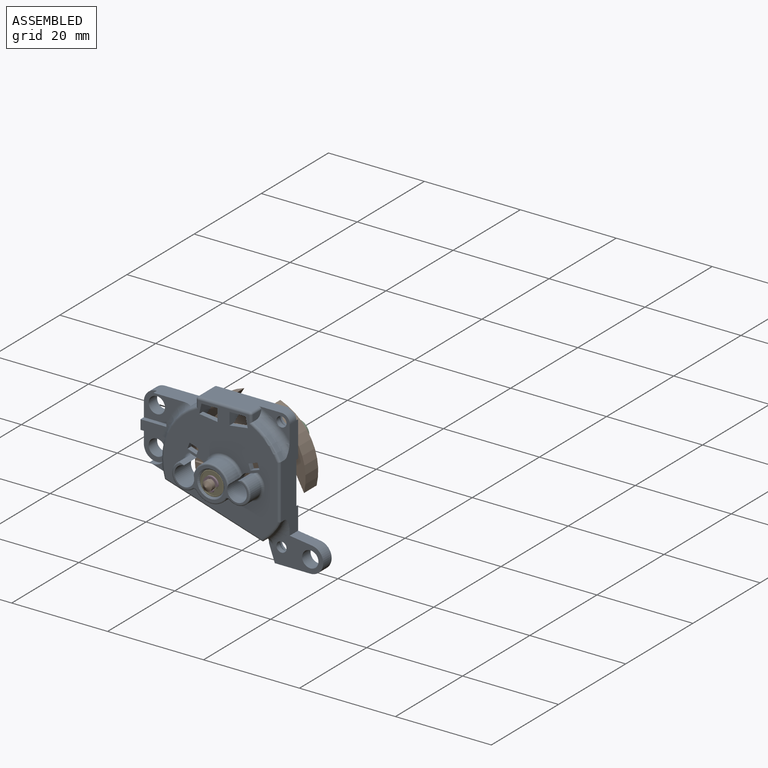
[diagram: assembled view]
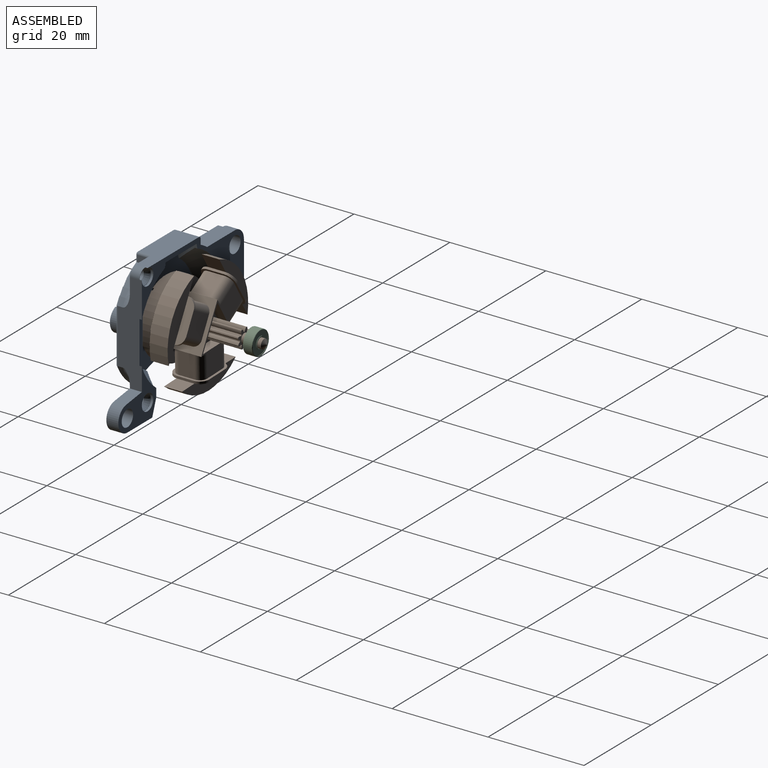
[diagram: assembled view, second angle]
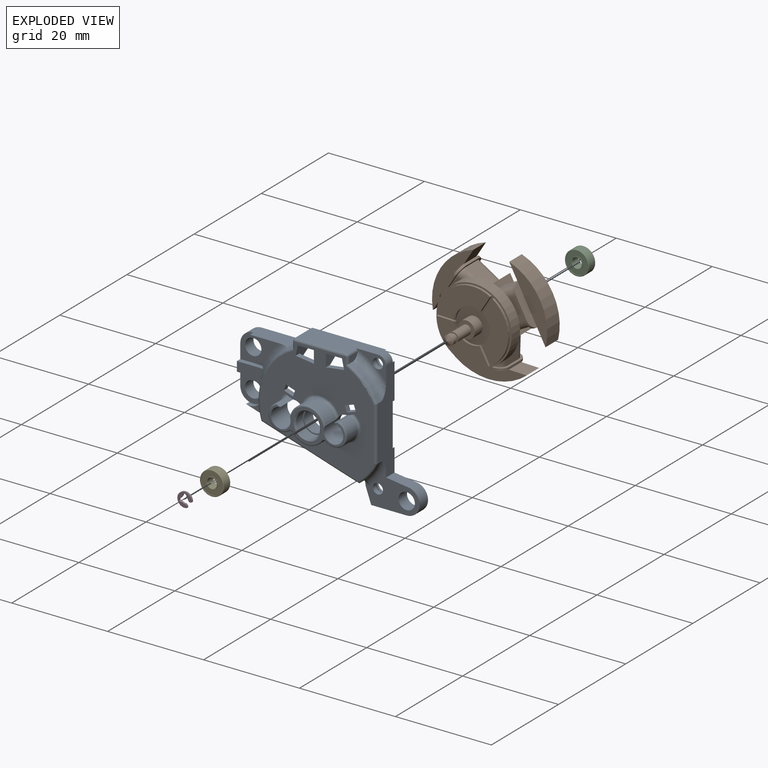
[diagram: exploded view]
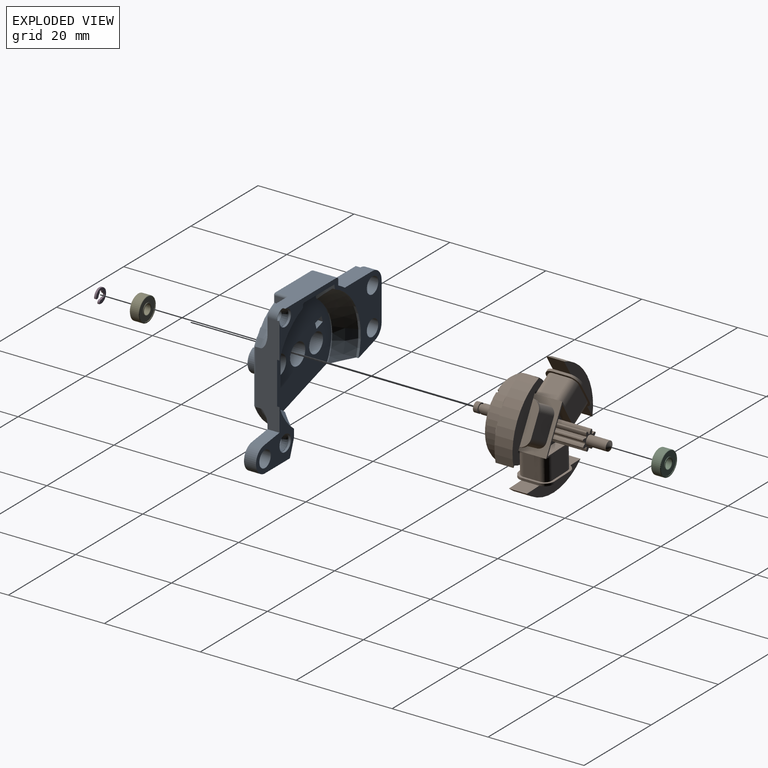
[diagram: exploded view, second angle]
ASSEMBLY  parts=5 mates=4
PART A: 124 faces, bbox 37.6x9.5x30.6 mm
  f0: cone r=12.5mm half-angle=34deg, axis (0,1,0), area 78.3mm2, adj f13,f17,f18,f19,f47,f48,f57,f105
  f1: plane 1.25x0.06mm, normal (0,1,0), area 0mm2, adj f34,f38,f103
  f2: plane 2.71x1.29mm, normal (0,-1,0), area 1.1mm2, adj f18,f71,f88
  f3: plane 5.09x2mm, normal (0,-1,0), area 9.6mm2, adj f31,f68,f69,f88
  f4: plane 23.7x22.7mm, normal (0,-1,0), area 287.5mm2, adj f11,f13,f34,f35,f38,f54,f56,f58
  f5: cylinder r=13mm len=4.59mm, axis (0,1,0), area 5.9mm2, adj f12,f19,f84,f85,f86,f97
  f6: plane 5.05x1.41mm, normal (-1,0,0), area 5.8mm2, adj f14,f27,f28,f88,f94
  f7: plane 5.7x5.4mm, normal (0,-1,0), area 18.6mm2, adj f30,f31,f40,f68,f72,f73
  f8: plane 5.7x5.4mm, normal (0,-1,0), area 18.6mm2, adj f31,f32,f39,f69,f70,f71
  f9: plane 20x19.58mm, normal (0,1,0), area 249.9mm2, adj f11,f13,f17,f18,f33,f36,f54,f56
  f10: plane 6.4x4.94mm, normal (0,-1,0), area 8.6mm2, adj f12,f25,f26,f41,f53,f89,f91
  f11: plane 5.5x4.15mm, normal (0.98,0,-0.21), area 13.2mm2, adj f4,f9,f14,f33,f34,f50,f58,f104
  f12: plane 21x5mm, normal (1,0,0), area 78.5mm2, adj f5,f10,f14,f15,f16,f24,f25,f43
  f13: plane 5.5x4.15mm, normal (-0.98,0,-0.21), area 13.2mm2, adj f0,f4,f9,f14,f17,f34,f47,f59
  f14: plane 30.4x17.63mm, normal (0,1,0), area 118.5mm2, adj f6,f11,f12,f13,f18,f26,f27,f28
  f15: plane 11.3x10.8mm, normal (0,1,0), area 47.6mm2, adj f12,f20,f21,f22,f23,f24,f42,f46
  f16: plane 11.3x6.64mm, normal (0,-1,0), area 40.8mm2, adj f12,f20,f21,f22,f23,f24,f37,f42
  f17: cylinder r=10mm len=17.16mm, axis (0,1,0), area 4.1mm2, adj f0,f9,f13,f57
  f18: plane 21.3x6.62mm, normal (-0.3,0,-0.95), area 36.9mm2, adj f0,f2,f9,f14,f19,f32,f33,f50
  f19: plane 4.5x3.49mm, normal (-0.29,0,-0.96), area 9.1mm2, adj f0,f5,f18,f20,f87,f95
  f20: plane 4.19x1.92mm, normal (-1,0,0), area 4.8mm2, adj f15,f16,f19,f21,f48,f87
  f21: plane 3.4x2.5mm, normal (-0.94,0,-0.33), area 9mm2, adj f15,f16,f20,f22
  f22: plane 7.4x2.5mm, normal (0,0,-1), area 18.5mm2, adj f15,f16,f21,f23
  f23: cylinder r=2.7mm len=5.38mm, axis (0,1,0), area 20.3mm2, adj f15,f16,f22,f24
  f24: plane 4.66x2.5mm, normal (0.13,0,0.99), area 11.7mm2, adj f12,f15,f16,f23
  f25: cylinder r=1.7mm len=2mm, axis (0,1,0), area 5.3mm2, adj f10,f12,f26,f44
  f26: plane 15.3x5mm, normal (0,0,1), area 64.8mm2, adj f10,f14,f25,f27,f43,f53,f98
  f27: cylinder r=0.5mm len=5mm, axis (0,1,0), area 3.9mm2, adj f6,f14,f26,f96
  f28: cylinder r=13.2mm len=4.25mm, axis (0,1,0), area 9.6mm2, adj f6,f14,f29,f88
  f29: plane 8.37x4.35mm, normal (0,0,1), area 29.4mm2, adj f14,f28,f30,f72,f74,f88
  f30: cylinder r=2.7mm len=2.7mm, axis (0,1,0), area 10.6mm2, adj f7,f14,f29,f31
  f31: plane 8x3.5mm, normal (-1,0,0), area 22mm2, adj f3,f7,f8,f14,f30,f32,f68,f69
  f32: cylinder r=2.7mm len=2.58mm, axis (0,1,0), area 8.6mm2, adj f8,f14,f18,f31
  f33: cylinder r=10mm len=13.49mm, axis (0,1,0), area 3.1mm2, adj f9,f11,f18,f104
  f34: plane 9.2x5.5mm, normal (0,0,-1), area 38.1mm2, adj f1,f4,f11,f13,f14,f35,f38,f49
  f35: plane 5.03x2.61mm, normal (-1,0,0), area 8.2mm2, adj f4,f34,f36,f49,f58,f103
  f36: cylinder r=10mm len=2.5mm, axis (0,1,0), area 0.5mm2, adj f9,f35,f38,f103
  f37: cylinder r=1.05mm len=2.1mm, axis (0,1,0), area 6.6mm2, adj f16,f85,f107
  f38: plane 5.03x2.61mm, normal (1,0,0), area 8.2mm2, adj f1,f4,f34,f36,f59,f103
  f39: cylinder r=1.7mm len=3.4mm, axis (0,1,0), area 26.7mm2, adj f8,f14
  f40: cylinder r=1.7mm len=3.4mm, axis (0,1,0), area 26.7mm2, adj f7,f14
  f41: cylinder r=1.05mm len=2.1mm, axis (0,1,0), area 6.6mm2, adj f10,f90,f108
  f42: cylinder r=1.7mm len=3.4mm, axis (0,1,0), area 26.7mm2, adj f15,f16
  f43: cylinder r=1.7mm len=3.4mm, axis (0,1,0), area 4mm2, adj f12,f14,f26,f44
  f44: plane 3.4x3.4mm, normal (0,1,0), area 0.5mm2, adj f25,f43,f108
  f45: plane 3.4x3.4mm, normal (0,1,0), area 0.5mm2, adj f46,f107
  f46: cylinder r=1.7mm len=3.4mm, axis (0,1,0), area 5.3mm2, adj f15,f45
  f47: cylinder r=12.5mm len=7.14mm, axis (0,1,0), area 5.1mm2, adj f0,f12,f13,f14,f106
  f48: cylinder r=12.5mm len=5.67mm, axis (0,1,0), area 3.6mm2, adj f0,f12,f15,f20,f106
  f49: plane 1.25x0.06mm, normal (0,1,0), area 0mm2, adj f34,f35,f103
  f50: cylinder r=12.5mm len=15.67mm, axis (0,1,0), area 9.5mm2, adj f11,f14,f18,f104
  f51: cylinder r=13mm len=5.97mm, axis (0,1,0), area 8.5mm2, adj f12,f52,f89,f90,f91,f101
  f52: plane 2.7x1.59mm, normal (1,0,0), area 2.9mm2, adj f51,f53,f89,f102
  f53: cylinder r=0.5mm len=2.5mm, axis (0,1,0), area 2mm2, adj f10,f26,f52,f89,f100
  f54: cylinder r=2.05mm len=4.9mm, axis (0,1,0), area 54.1mm2, adj f4,f9,f76,f77,f79,f121,f123
  f55: cylinder r=2.52mm len=5.05mm, axis (0,1,0), area 31.7mm2, adj f110,f122
  f56: cylinder r=2.05mm len=4.9mm, axis (0,1,0), area 54.1mm2, adj f4,f9,f76,f77,f81,f121,f123
  f57: plane 0.42x0.38mm, normal (-0.68,0,0.73), area 0.2mm2, adj f0,f9,f17,f18
  f58: plane 3.8x1.1mm, normal (0.13,0,0.99), area 4.2mm2, adj f4,f9,f11,f35
  f59: plane 3.8x1.1mm, normal (-0.13,0,0.99), area 4.2mm2, adj f4,f9,f13,f38
  f60: plane 1.89x1.1mm, normal (-0.32,0,-0.95), area 2.2mm2, adj f4,f9,f61,f63
  f61: plane 1.23x1.1mm, normal (0.95,0,-0.32), area 1.4mm2, adj f4,f9,f60,f62
  f62: plane 1.89x1.1mm, normal (0.32,0,0.95), area 2.2mm2, adj f4,f9,f61,f63
  f63: plane 1.23x1.1mm, normal (-0.95,0,0.32), area 1.4mm2, adj f4,f9,f60,f62
  f64: plane 1.89x1.1mm, normal (-0.32,0,0.95), area 2.2mm2, adj f4,f9,f65,f67
  f65: plane 1.23x1.1mm, normal (-0.95,0,-0.32), area 1.4mm2, adj f4,f9,f64,f66
  f66: plane 1.89x1.1mm, normal (0.32,0,-0.95), area 2.2mm2, adj f4,f9,f65,f67
  f67: plane 1.23x1.1mm, normal (0.95,0,0.32), area 1.4mm2, adj f4,f9,f64,f66
  f68: plane 5.4x1.03mm, normal (0,0,1), area 5.4mm2, adj f3,f7,f31,f73,f88
  f69: plane 5.4x1.28mm, normal (0,0,-1), area 5.5mm2, adj f3,f8,f31,f70,f88
  f70: plane 3.21x1.81mm, normal (-1,0,0), area 4.4mm2, adj f8,f69,f71,f88
  f71: cylinder r=2.7mm len=3.5mm, axis (0,1,0), area 5.8mm2, adj f2,f8,f18,f70,f88
  f72: cylinder r=2.7mm len=2.7mm, axis (0,1,0), area 4.2mm2, adj f7,f29,f73,f74
  f73: plane 3.01x1.04mm, normal (-1,0,0), area 3mm2, adj f7,f68,f72,f74,f88
  f74: plane 6.21x4.92mm, normal (0,-1,0), area 8.9mm2, adj f29,f72,f73,f88
  f75: cylinder r=3.75mm len=6.16mm, axis (0,1,0), area 21.7mm2, adj f82,f83,f113,f118
  f76: cylinder r=3.75mm len=7.29mm, axis (0,1,0), area 30mm2, adj f54,f56,f121,f123
  f77: plane 15.7x6.9mm, normal (0,-1,0), area 18.5mm2, adj f54,f56,f79,f81,f111,f112,f113,f114
  f78: cylinder r=2.65mm len=5.05mm, axis (0,1,0), area 27mm2, adj f79,f82,f115,f116
  f79: plane 3.95x1.82mm, normal (0.32,0,0.95), area 4.2mm2, adj f4,f54,f77,f78,f115,f116
  f80: cylinder r=2.65mm len=5.05mm, axis (0,1,0), area 27mm2, adj f81,f83,f111,f120
  f81: plane 3.95x1.82mm, normal (-0.32,0,0.95), area 4.2mm2, adj f4,f56,f77,f80,f111,f120
  f82: cylinder r=0.5mm len=3mm, axis (0,-1,0), area 2.5mm2, adj f75,f78,f114,f117
  f83: cylinder r=0.5mm len=3mm, axis (0,-1,0), area 2.5mm2, adj f75,f80,f112,f119
  f84: torus R=14.5mm, axis (0,-1,0), area 10.1mm2, adj f5,f12,f16,f85
  f85: bspline ~1.98x1.94mm, area 1.7mm2, adj f5,f37,f84,f86
  f86: torus R=14.5mm, axis (0,-1,0), area 1.1mm2, adj f5,f16,f85,f87
  f87: cylinder r=1.5mm len=1.83mm, axis (-0.96,0,0.29), area 1.6mm2, adj f16,f19,f20,f86
  f88: torus R=14.5mm, axis (0,-1,0), area 34mm2, adj f2,f3,f6,f18,f28,f29,f68,f69
  f89: torus R=14.5mm, axis (0,-1,0), area 7.6mm2, adj f10,f51,f52,f53,f90
  f90: bspline ~1.99x1.93mm, area 1.7mm2, adj f41,f51,f89,f91
  f91: torus R=14.5mm, axis (0,-1,0), area 10.1mm2, adj f10,f12,f51,f90
  f92: torus R=12.5mm, axis (0,-1,0), area 14.3mm2, adj f4,f88,f93,f94
  f93: cylinder r=0.5mm len=17.03mm, axis (-0.95,0,0.3), area 13.8mm2, adj f4,f18,f92,f95
  f94: cylinder r=0.5mm len=1.68mm, axis (0,0,1), area 1.2mm2, adj f4,f6,f92,f96
  f95: cylinder r=0.5mm len=3.64mm, axis (-0.96,0,0.29), area 2.8mm2, adj f4,f19,f93,f97
  f96: sphere r=0.5mm, area 0.4mm2, adj f27,f94,f98
  f97: torus R=12.5mm, axis (0,-1,0), area 4.5mm2, adj f4,f5,f95,f99
  f98: cylinder r=0.5mm len=10.6mm, axis (1,0,0), area 8.3mm2, adj f4,f26,f96,f100
  f99: cylinder r=0.5mm len=11.33mm, axis (0,0,-1), area 8.8mm2, adj f4,f12,f97,f101
  f100: sphere r=0.5mm, area 0.4mm2, adj f53,f98,f102
  f101: torus R=12.5mm, axis (0,-1,0), area 6.7mm2, adj f4,f51,f99,f102
  f102: cylinder r=0.5mm len=1.68mm, axis (0,0,-1), area 1.2mm2, adj f4,f52,f100,f101
  f103: cone r=12.5mm half-angle=34deg, axis (0,1,0), area 11.3mm2, adj f1,f35,f36,f38,f49
  f104: cone r=12.5mm half-angle=34deg, axis (0,1,0), area 76.3mm2, adj f11,f18,f33,f50
  f105: plane 12.94x2.68mm, normal (-1,0,0), area 22.6mm2, adj f0,f106
  f106: plane 12.92x1mm, normal (0,1,0), area 11mm2, adj f12,f47,f48,f105
  f107: cone r=1.65mm half-angle=31deg, axis (0,1,0), area 9.9mm2, adj f37,f45
  f108: cone r=1.65mm half-angle=31deg, axis (0,1,0), area 9.9mm2, adj f41,f44
  f109: cylinder r=2.25mm len=4.5mm, axis (0,-1,0), area 36.8mm2, adj f9,f110
  f110: plane 5.05x5.05mm, normal (0,-1,0), area 4.1mm2, adj f55,f109
  f111: torus R=2.35mm, axis (0,-1,0), area 4.2mm2, adj f77,f80,f81,f112
  f112: torus R=0.8mm, axis (0,-1,0), area 0.5mm2, adj f77,f83,f111,f113
  f113: torus R=3.45mm, axis (0,-1,0), area 3.3mm2, adj f75,f77,f112,f114
  f114: torus R=0.8mm, axis (0,-1,0), area 0.5mm2, adj f77,f82,f113,f115
  f115: torus R=2.35mm, axis (0,-1,0), area 4.2mm2, adj f77,f78,f79,f114
  f116: torus R=3.15mm, axis (0,-1,0), area 7.4mm2, adj f4,f78,f79,f117
  f117: sphere r=0.5mm, area 0.4mm2, adj f82,f116,f118
  f118: torus R=4.25mm, axis (0,-1,0), area 6mm2, adj f4,f75,f117,f119
  f119: sphere r=0.5mm, area 0.4mm2, adj f83,f118,f120
  f120: torus R=3.15mm, axis (0,-1,0), area 7.4mm2, adj f4,f80,f81,f119
  f121: torus R=4.25mm, axis (0,-1,0), area 7.9mm2, adj f4,f54,f56,f76
  f122: cone r=2.52mm half-angle=45deg, axis (0,-1,0), area 7.1mm2, adj f55,f77
  f123: torus R=3.45mm, axis (0,-1,0), area 4.8mm2, adj f54,f56,f76,f77
PART B: 141 faces, bbox 24x28.9x23.4 mm
  f0: cylinder r=1mm len=3.8mm, axis (0,1,0), area 23.9mm2, adj f65,f137
  f1: plane 10.2x8mm, normal (0,0,1), area 35.3mm2, adj f69,f108,f110,f111,f112,f113,f114,f115
  f2: plane 3.75x3.22mm, normal (0.87,0,0.5), area 13.9mm2, adj f4,f5,f6,f12,f13,f14
  f3: plane 3.75x3.22mm, normal (0.87,0,0.5), area 13.9mm2, adj f4,f5,f6,f8,f9,f10
  f4: plane 13.86x8.25mm, normal (0,1,0), area 33.5mm2, adj f2,f3,f6,f7
  f5: plane 13.86x8.25mm, normal (0,-1,0), area 33.5mm2, adj f2,f3,f6,f25
  f6: cylinder r=12mm len=13.86mm, axis (0,1,0), area 65.7mm2, adj f2,f3,f4,f5
  f7: plane 7.43x4.29mm, normal (-0.87,0,-0.5), area 13.8mm2, adj f4,f10,f11,f12
  f8: cylinder r=2mm len=2mm, axis (0.87,0,0.5), area 1.6mm2, adj f3,f9,f15,f16,f25
  f9: plane 3.35x0.43mm, normal (0.5,0,-0.87), area 1.7mm2, adj f3,f8,f10,f16
  f10: cylinder r=2mm len=2mm, axis (0.87,0,0.5), area 1.6mm2, adj f3,f7,f9,f11,f16
  f11: plane 4.23x2.73mm, normal (0,1,0), area 2.3mm2, adj f7,f10,f12,f16
  f12: cylinder r=2mm len=2mm, axis (0.87,0,0.5), area 1.6mm2, adj f2,f7,f11,f13,f16
  f13: plane 3.35x0.43mm, normal (-0.5,0,0.87), area 1.7mm2, adj f2,f12,f14,f16
  f14: cylinder r=2mm len=2mm, axis (0.87,0,0.5), area 1.6mm2, adj f2,f13,f15,f16,f25
  f15: plane 4.23x2.73mm, normal (0,-1,0), area 2.3mm2, adj f8,f14,f16,f25
  f16: plane 7.45x7.35mm, normal (0.87,0,0.5), area 13.4mm2, adj f8,f9,f10,f11,f12,f13,f14,f15
  f17: cylinder r=1.5mm len=5.51mm, axis (0.87,0,0.5), area 13mm2, adj f16,f18,f24,f111
  f18: plane 7.06x6.73mm, normal (0,1,0), area 25.3mm2, adj f16,f17,f19,f111
  f19: cylinder r=1.5mm len=5.51mm, axis (0.87,0,0.5), area 13mm2, adj f16,f18,f20,f111
  f20: plane 4.76x3.35mm, normal (-0.5,0,0.87), area 18.4mm2, adj f16,f19,f21,f111
  f21: cylinder r=1.5mm len=5.51mm, axis (0.87,0,0.5), area 13mm2, adj f16,f20,f22,f111
  f22: plane 7.06x6.73mm, normal (0,-1,0), area 25.3mm2, adj f16,f21,f23,f111
  f23: cylinder r=1.5mm len=5.51mm, axis (0.87,0,0.5), area 13mm2, adj f16,f22,f24,f111
  f24: plane 4.76x3.35mm, normal (0.5,0,-0.87), area 18.4mm2, adj f16,f17,f23,f111
  f25: plane 7.43x4.29mm, normal (-0.87,0,-0.5), area 13.8mm2, adj f5,f8,f14,f15
  f26: plane 11.03x7.25mm, normal (0,-1,0), area 43.2mm2, adj f27,f28,f29,f30
  f27: plane 3.88x0.5mm, normal (0,0,1), area 1.9mm2, adj f26,f28,f30,f67
  f28: cylinder r=7.5mm len=11.03mm, axis (0,1,0), area 7.6mm2, adj f26,f27,f29,f67
  f29: plane 3.36x1.94mm, normal (-0.87,0,0.5), area 1.9mm2, adj f26,f28,f30,f67
  f30: cylinder r=3.62mm len=5.21mm, axis (0,1,0), area 3.5mm2, adj f26,f27,f29,f67
  f31: plane 11.03x7.25mm, normal (0,-1,0), area 43.2mm2, adj f32,f33,f34,f35
  f32: plane 3.36x1.94mm, normal (-0.87,0,-0.5), area 1.9mm2, adj f31,f33,f35,f67
  f33: cylinder r=7.5mm len=11.03mm, axis (0,1,0), area 7.6mm2, adj f31,f32,f34,f67
  f34: plane 3.88x0.5mm, normal (0,0,-1), area 1.9mm2, adj f31,f33,f35,f67
  f35: cylinder r=3.62mm len=5.21mm, axis (0,1,0), area 3.5mm2, adj f31,f32,f34,f67
  f36: plane 12.73x5.48mm, normal (0,-1,0), area 43.2mm2, adj f37,f38,f39,f40
  f37: plane 3.36x1.94mm, normal (0.87,0,-0.5), area 1.9mm2, adj f36,f38,f40,f67
  f38: cylinder r=7.5mm len=12.73mm, axis (0,1,0), area 7.6mm2, adj f36,f37,f39,f67
  f39: plane 3.36x1.94mm, normal (0.87,0,0.5), area 1.9mm2, adj f36,f38,f40,f67
  f40: cylinder r=3.62mm len=6.01mm, axis (0,1,0), area 3.5mm2, adj f36,f37,f39,f67
  f41: plane 3.75x3.22mm, normal (-0.87,0,0.5), area 13.9mm2, adj f43,f44,f45,f51,f52,f53
  f42: plane 3.75x3.22mm, normal (-0.87,0,0.5), area 13.9mm2, adj f43,f44,f45,f47,f48,f49
  f43: plane 13.86x8.25mm, normal (0,1,0), area 33.5mm2, adj f41,f42,f45,f46
  f44: plane 13.86x8.25mm, normal (0,-1,0), area 33.5mm2, adj f41,f42,f45,f64
  f45: cylinder r=12mm len=13.86mm, axis (0,1,0), area 65.7mm2, adj f41,f42,f43,f44
  f46: plane 7.43x4.29mm, normal (0.87,0,-0.5), area 13.8mm2, adj f43,f49,f50,f51
  f47: cylinder r=2mm len=2mm, axis (-0.87,0,0.5), area 1.6mm2, adj f42,f48,f54,f55,f64
  f48: plane 3.35x0.43mm, normal (0.5,0,0.87), area 1.7mm2, adj f42,f47,f49,f55
  f49: cylinder r=2mm len=2mm, axis (-0.87,0,0.5), area 1.6mm2, adj f42,f46,f48,f50,f55
  f50: plane 4.23x2.73mm, normal (0,1,0), area 2.3mm2, adj f46,f49,f51,f55
  f51: cylinder r=2mm len=2mm, axis (-0.87,0,0.5), area 1.6mm2, adj f41,f46,f50,f52,f55
  f52: plane 3.35x0.43mm, normal (-0.5,0,-0.87), area 1.7mm2, adj f41,f51,f53,f55
  f53: cylinder r=2mm len=2mm, axis (-0.87,0,0.5), area 1.6mm2, adj f41,f52,f54,f55,f64
  f54: plane 4.23x2.73mm, normal (0,-1,0), area 2.3mm2, adj f47,f53,f55,f64
  f55: plane 7.45x7.35mm, normal (-0.87,0,0.5), area 13.4mm2, adj f47,f48,f49,f50,f51,f52,f53,f54
  f56: cylinder r=1.5mm len=5.51mm, axis (-0.87,0,0.5), area 13mm2, adj f55,f57,f63,f110
  f57: plane 7.06x6.73mm, normal (0,1,0), area 25.3mm2, adj f55,f56,f58,f110
  f58: cylinder r=1.5mm len=5.51mm, axis (-0.87,0,0.5), area 13mm2, adj f55,f57,f59,f110
  f59: plane 4.76x3.35mm, normal (-0.5,0,-0.87), area 18.4mm2, adj f55,f58,f60,f110
  f60: cylinder r=1.5mm len=5.51mm, axis (-0.87,0,0.5), area 13mm2, adj f55,f59,f61,f110
  f61: plane 7.06x6.73mm, normal (0,-1,0), area 25.3mm2, adj f55,f60,f62,f110
  f62: cylinder r=1.5mm len=5.51mm, axis (-0.87,0,0.5), area 13mm2, adj f55,f61,f63,f110
  f63: plane 4.76x3.35mm, normal (0.5,0,0.87), area 18.4mm2, adj f55,f56,f62,f110
  f64: plane 7.43x4.29mm, normal (0.87,0,-0.5), area 13.8mm2, adj f44,f47,f53,f54
  f65: plane 3.55x3.55mm, normal (0,-1,0), area 6.8mm2, adj f0,f66
  f66: cylinder r=1.78mm len=3.55mm, axis (0,1,0), area 25.7mm2, adj f65,f67
  f67: plane 15.7x15.7mm, normal (0,-1,0), area 54.1mm2, adj f27,f28,f29,f30,f32,f33,f34,f35
  f68: cylinder r=7.85mm len=15.7mm, axis (0,1,0), area 123.3mm2, adj f67,f69
  f69: plane 15.7x15.7mm, normal (0,1,0), area 148.5mm2, adj f1,f68,f110,f111
  f70: cone r=1mm half-angle=60deg, axis (0,-1,0), area 3.6mm2, adj f71
  f71: cylinder r=1mm len=4.12mm, axis (0,-1,0), area 25.9mm2, adj f70,f72
  f72: plane 3.78x3.78mm, normal (0,1,0), area 5.3mm2, adj f71,f73,f74,f75,f76,f77,f78,f79
  f73: plane 7.5x0.21mm, normal (0.71,0,0.71), area 2.3mm2, adj f72,f74,f104,f109
  f74: cylinder r=1mm len=7.5mm, axis (0,-1,0), area 6.3mm2, adj f72,f73,f75,f109
  f75: cylinder r=2mm len=7.5mm, axis (0,-1,0), area 1.9mm2, adj f72,f74,f76,f109
  f76: cylinder r=1mm len=7.5mm, axis (0,-1,0), area 6.3mm2, adj f72,f75,f77,f109
  f77: plane 7.5x0.3mm, normal (0,0,1), area 2.2mm2, adj f72,f76,f78,f109
  f78: cylinder r=1mm len=7.5mm, axis (0,-1,0), area 6.3mm2, adj f72,f77,f79,f109
  f79: cylinder r=2mm len=7.5mm, axis (0,-1,0), area 1.9mm2, adj f72,f78,f80,f109
  f80: cylinder r=1mm len=7.5mm, axis (0,-1,0), area 6.3mm2, adj f72,f79,f81,f109
  f81: plane 7.5x0.21mm, normal (-0.71,0,0.71), area 2.3mm2, adj f72,f80,f82,f109
  f82: cylinder r=1mm len=7.5mm, axis (0,-1,0), area 6.3mm2, adj f72,f81,f83,f109
  f83: cylinder r=2mm len=7.5mm, axis (0,-1,0), area 1.9mm2, adj f72,f82,f84,f109
  f84: cylinder r=1mm len=7.5mm, axis (0,-1,0), area 6.3mm2, adj f72,f83,f85,f109
  f85: plane 7.5x0.3mm, normal (-1,0,0), area 2.2mm2, adj f72,f84,f86,f109
  f86: cylinder r=1mm len=7.5mm, axis (0,-1,0), area 6.3mm2, adj f72,f85,f87,f109
  f87: cylinder r=2mm len=7.5mm, axis (0,-1,0), area 1.9mm2, adj f72,f86,f88,f109
  f88: cylinder r=1mm len=7.5mm, axis (0,-1,0), area 6.3mm2, adj f72,f87,f89,f109
  f89: plane 7.5x0.21mm, normal (-0.71,0,-0.71), area 2.3mm2, adj f72,f88,f90,f109
  f90: cylinder r=1mm len=7.5mm, axis (0,-1,0), area 6.3mm2, adj f72,f89,f91,f109
  f91: cylinder r=2mm len=7.5mm, axis (0,-1,0), area 1.9mm2, adj f72,f90,f92,f109
  f92: cylinder r=1mm len=7.5mm, axis (0,-1,0), area 6.3mm2, adj f72,f91,f93,f109
  f93: plane 7.5x0.3mm, normal (0,0,-1), area 2.2mm2, adj f72,f92,f94,f109
  f94: cylinder r=1mm len=7.5mm, axis (0,-1,0), area 6.3mm2, adj f72,f93,f95,f109
  f95: cylinder r=2mm len=7.5mm, axis (0,-1,0), area 1.9mm2, adj f72,f94,f96,f109
  f96: cylinder r=1mm len=7.5mm, axis (0,-1,0), area 6.3mm2, adj f72,f95,f97,f109
  f97: plane 7.5x0.21mm, normal (0.71,0,-0.71), area 2.3mm2, adj f72,f96,f98,f109
  f98: cylinder r=1mm len=7.5mm, axis (0,-1,0), area 6.3mm2, adj f72,f97,f99,f109
  f99: cylinder r=2mm len=7.5mm, axis (0,-1,0), area 1.9mm2, adj f72,f98,f100,f109
  f100: cylinder r=1mm len=7.5mm, axis (0,-1,0), area 6.3mm2, adj f72,f99,f101,f109
  f101: plane 7.5x0.3mm, normal (1,0,0), area 2.2mm2, adj f72,f100,f102,f109
  f102: cylinder r=1mm len=7.5mm, axis (0,-1,0), area 6.3mm2, adj f72,f101,f103,f109
  f103: cylinder r=2mm len=7.5mm, axis (0,-1,0), area 1.9mm2, adj f72,f102,f104,f109
  f104: cylinder r=1mm len=7.5mm, axis (0,-1,0), area 6.3mm2, adj f72,f73,f103,f109
  f105: plane 7.93x4.58mm, normal (0.87,0,0.5), area 18.3mm2, adj f106,f107,f108,f109
  f106: plane 7.93x4.58mm, normal (-0.87,0,0.5), area 18.3mm2, adj f105,f107,f108,f109
  f107: plane 9.16x2mm, normal (0,0,-1), area 18.3mm2, adj f105,f106,f108,f109
  f108: plane 10.2x8.83mm, normal (0,1,0), area 8.7mm2, adj f1,f105,f106,f107,f110,f111
  f109: plane 9.16x7.93mm, normal (0,1,0), area 27.9mm2, adj f73,f74,f75,f76,f77,f78,f79,f80
  f110: plane 8.83x8mm, normal (0.87,0,-0.5), area 35.3mm2, adj f1,f56,f57,f58,f59,f60,f61,f62
  f111: plane 8.83x8mm, normal (-0.87,0,-0.5), area 35.3mm2, adj f1,f17,f18,f19,f20,f21,f22,f23
  f112: plane 5.5x3.35mm, normal (-1,0,0), area 18.4mm2, adj f1,f113,f119,f135
  f113: cylinder r=1.5mm len=5.5mm, axis (0,0,-1), area 13mm2, adj f1,f112,f114,f135
  f114: plane 5.5x4.6mm, normal (0,-1,0), area 25.3mm2, adj f1,f113,f115,f135
  f115: cylinder r=1.5mm len=5.5mm, axis (0,0,-1), area 13mm2, adj f1,f114,f116,f135
  f116: plane 5.5x3.35mm, normal (1,0,0), area 18.4mm2, adj f1,f115,f117,f135
  f117: cylinder r=1.5mm len=5.5mm, axis (0,0,-1), area 13mm2, adj f1,f116,f118,f135
  f118: plane 5.5x4.6mm, normal (0,1,0), area 25.3mm2, adj f1,f117,f119,f135
  f119: cylinder r=1.5mm len=5.5mm, axis (0,0,-1), area 13mm2, adj f1,f112,f118,f135
  f120: plane 16x3.06mm, normal (0,1,0), area 33.5mm2, adj f121,f123,f124,f125
  f121: cylinder r=12mm len=16mm, axis (0,1,0), area 65.7mm2, adj f120,f122,f123,f125
  f122: plane 16x3.06mm, normal (0,-1,0), area 33.5mm2, adj f121,f123,f125,f126
  f123: plane 3.75x3.71mm, normal (0,0,-1), area 13.9mm2, adj f120,f121,f122,f127,f128,f129
  f124: plane 8.58x1.8mm, normal (0,0,1), area 13.8mm2, adj f120,f129,f130,f131
  f125: plane 3.75x3.71mm, normal (0,0,-1), area 13.9mm2, adj f120,f121,f122,f131,f132,f133
  f126: plane 8.58x1.8mm, normal (0,0,1), area 13.8mm2, adj f122,f127,f133,f134
  f127: cylinder r=2mm len=2mm, axis (0,0,-1), area 1.6mm2, adj f123,f126,f128,f134,f135
  f128: plane 3.35x0.5mm, normal (1,0,0), area 1.7mm2, adj f123,f127,f129,f135
  f129: cylinder r=2mm len=2mm, axis (0,0,-1), area 1.6mm2, adj f123,f124,f128,f130,f135
  f130: plane 4.6x0.5mm, normal (0,1,0), area 2.3mm2, adj f124,f129,f131,f135
  f131: cylinder r=2mm len=2mm, axis (0,0,-1), area 1.6mm2, adj f124,f125,f130,f132,f135
  f132: plane 3.35x0.5mm, normal (-1,0,0), area 1.7mm2, adj f125,f131,f133,f135
  f133: cylinder r=2mm len=2mm, axis (0,0,-1), area 1.6mm2, adj f125,f126,f132,f134,f135
  f134: plane 4.6x0.5mm, normal (0,-1,0), area 2.3mm2, adj f126,f127,f133,f135
  f135: plane 8.6x7.35mm, normal (0,0,-1), area 13.4mm2, adj f112,f113,f114,f115,f116,f117,f118,f119
  f136: plane 2x2mm, normal (0,1,0), area 1.4mm2, adj f138,f140
  f137: plane 2x2mm, normal (0,-1,0), area 1.4mm2, adj f0,f138
  f138: cylinder r=0.75mm len=1.5mm, axis (0,1,0), area 2.4mm2, adj f136,f137
  f139: cone r=1mm half-angle=60deg, axis (0,1,0), area 3.6mm2, adj f140
  f140: cylinder r=1mm len=2mm, axis (0,1,0), area 6.1mm2, adj f136,f139
PART C: 16 faces, bbox 5.4x2x5.4 mm
  f0: cylinder r=1mm len=2mm, axis (0,-1,0), area 11.3mm2, adj f1,f15
  f1: torus R=1.1mm, axis (0,-1,0), area 1mm2, adj f0,f2
  f2: plane 2.5x2.5mm, normal (0,1,0), area 1.1mm2, adj f1,f3
  f3: cylinder r=1.25mm len=2.5mm, axis (0,-1,0), area 0.8mm2, adj f2,f4
  f4: plane 4.5x4.5mm, normal (0,1,0), area 11mm2, adj f3,f5
  f5: cylinder r=2.25mm len=4.5mm, axis (0,-1,0), area 1.4mm2, adj f4,f6
  f6: plane 4.8x4.8mm, normal (0,1,0), area 2.2mm2, adj f5,f7
  f7: torus R=2.4mm, axis (0,-1,0), area 2.4mm2, adj f6,f8
  f8: cylinder r=2.5mm len=5mm, axis (0,-1,0), area 28.3mm2, adj f7,f9
  f9: torus R=2.4mm, axis (0,-1,0), area 2.4mm2, adj f8,f10
  f10: plane 4.8x4.8mm, normal (0,-1,0), area 2.2mm2, adj f9,f11
  f11: cylinder r=2.25mm len=4.5mm, axis (0,-1,0), area 1.4mm2, adj f10,f12
  f12: plane 4.5x4.5mm, normal (0,-1,0), area 11mm2, adj f11,f13
  f13: cylinder r=1.25mm len=2.5mm, axis (0,-1,0), area 0.8mm2, adj f12,f14
  f14: plane 2.5x2.5mm, normal (0,-1,0), area 1.1mm2, adj f13,f15
  f15: torus R=1.1mm, axis (0,-1,0), area 1mm2, adj f0,f14
PART D: 10 faces, bbox 3x2.7x0.4 mm
  f0: cylinder r=0.48mm len=0.79mm, axis (0,0,-1), area 0.4mm2, adj f1,f7,f8,f9
  f1: cylinder r=1.5mm len=3mm, axis (0,0,-1), area 3.1mm2, adj f0,f2,f8,f9
  f2: cylinder r=0.48mm len=0.79mm, axis (0,0,-1), area 0.4mm2, adj f1,f3,f8,f9
  f3: cylinder r=0.75mm len=0.54mm, axis (0,0,-1), area 0.2mm2, adj f2,f4,f8,f9
  f4: cylinder r=0.41mm len=0.78mm, axis (0,0,-1), area 0.6mm2, adj f3,f5,f8,f9
  f5: cylinder r=0.75mm len=0.52mm, axis (0,0,-1), area 0.2mm2, adj f4,f6,f8,f9
  f6: cylinder r=0.41mm len=0.78mm, axis (0,0,-1), area 0.6mm2, adj f5,f7,f8,f9
  f7: cylinder r=0.75mm len=0.54mm, axis (0,0,-1), area 0.2mm2, adj f0,f6,f8,f9
  f8: plane 3x2.74mm, normal (0,0,1), area 3.8mm2, adj f0,f1,f2,f3,f4,f5,f6,f7
  f9: plane 3x2.74mm, normal (0,0,-1), area 3.8mm2, adj f0,f1,f2,f3,f4,f5,f6,f7
PART E: same geometry as C
PLACE A at identity fixed
PLACE B rot(axis=(0,-1,0),178.2deg) t=(0,3.7,0)mm
PLACE C rot(axis=(0,-1,0),178.2deg) t=(0,15.59,0)mm
PLACE D rot(axis=(-0.82,-0.4,-0.4),101.3deg) t=(-15.94,-9.4,-25.54)mm
PLACE E t=(0,-8,0)mm
MATE revolute E.f0 <-> B.f0  axis (0,-1,0) through (0,-8.9,0)mm
MATE fastened E.f0 <-> A.f109  axis (0,1,0) through (0,-7,0)mm
MATE slider C.f0 <-> B.f70  axis (0,-1,0) through (0,16.49,0)mm
MATE revolute D.f1 <-> E.f0  axis (0,1,0) through (0,-9,0)mm
